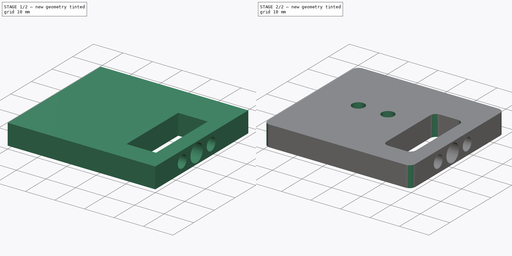
[diagram: build sequence overview — one tinted view per stage of 2, left to right]
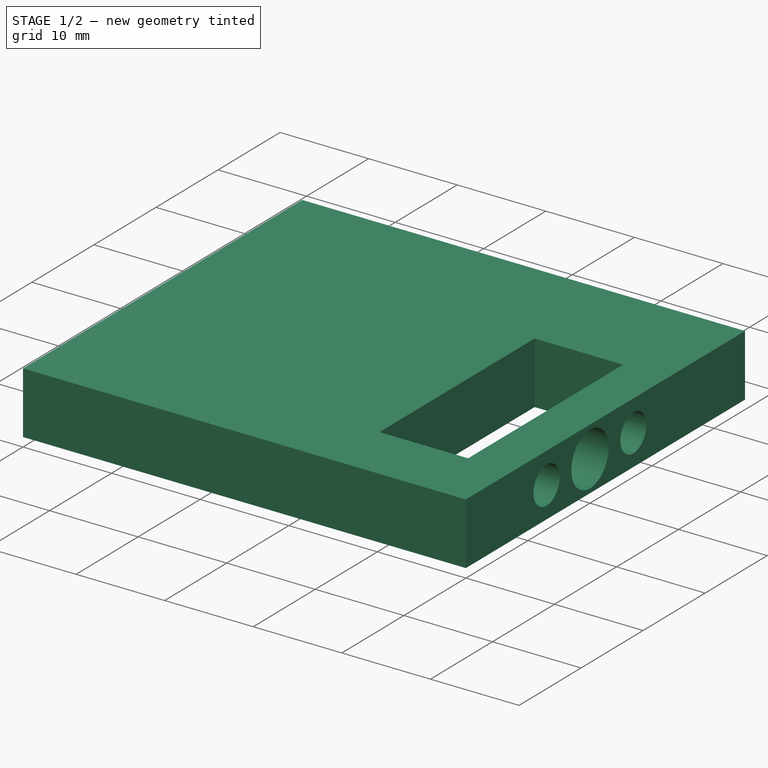
[diagram: stage 1 of 2 — iso view after this stage's code; geometry added in this stage tinted green]
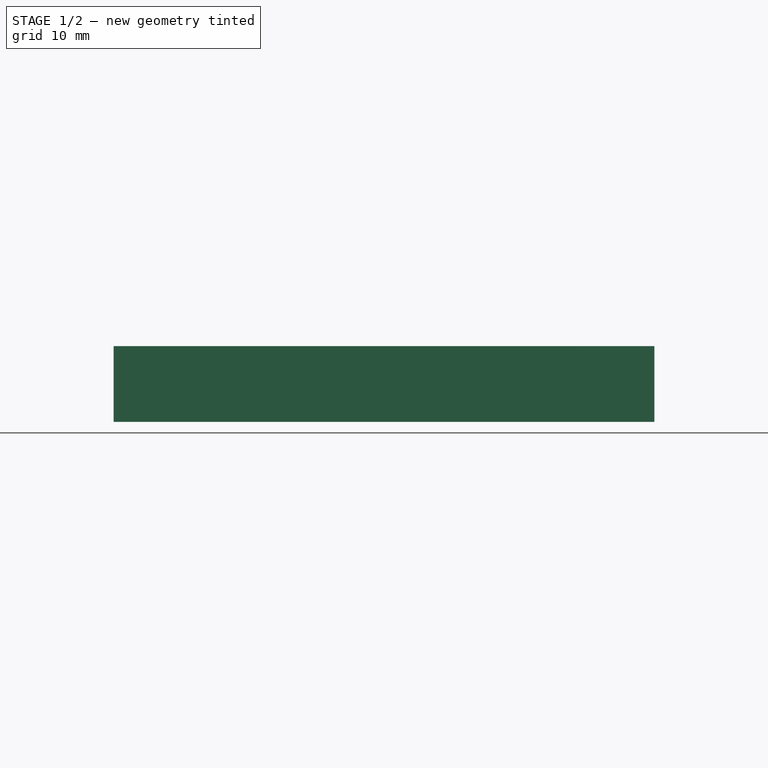
[diagram: stage 1 of 2 — front view after this stage's code; geometry added in this stage tinted green]
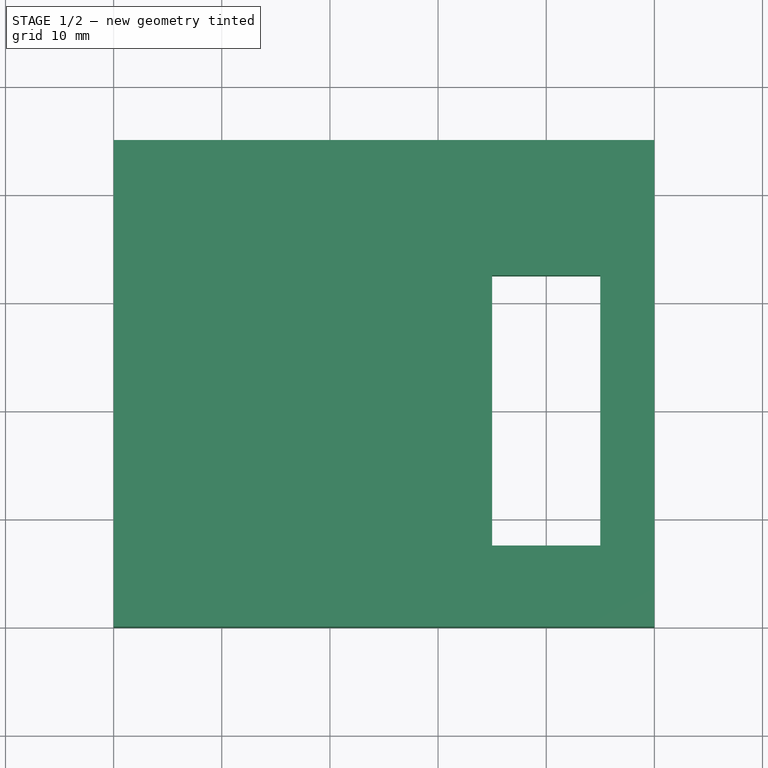
[diagram: stage 1 of 2 — top view after this stage's code; geometry added in this stage tinted green]
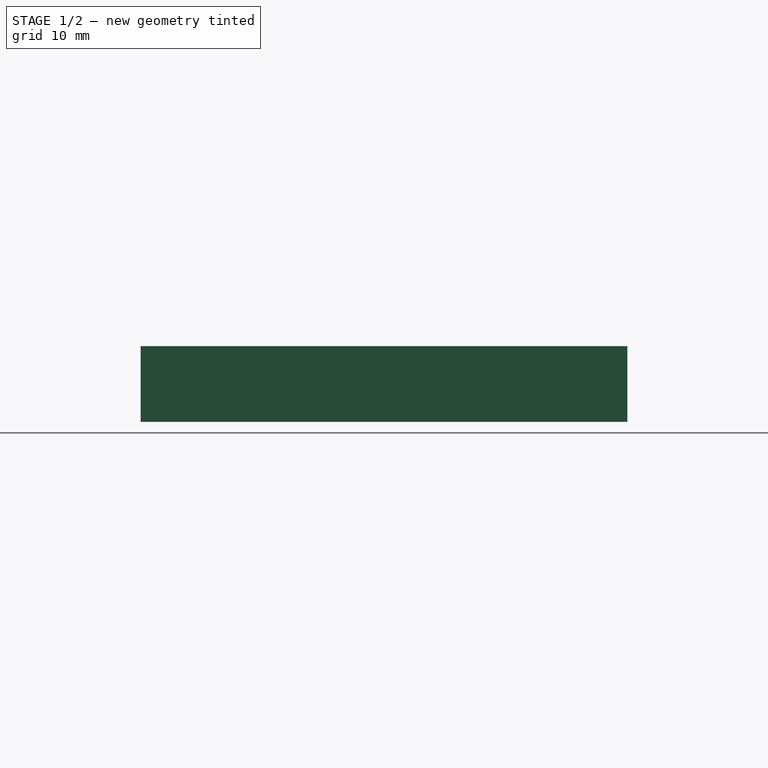
[diagram: stage 1 of 2 — right view after this stage's code; geometry added in this stage tinted green]
FCSTD DOCUMENT  (FreeCAD 2023.1102R14555 (Git shallow))
Label: Camera_Base
License: All rights reserved
LicenseURL: https://en.wikipedia.org/wiki/All_rights_reserved
objects: App::FeaturePython×8, Part::FeaturePython×7, Sketcher::SketchObject×3, App::Link×2, PartDesign::SubShapeBinder×2, Part::SubShapeBinder×2, PartDesign::Pocket×2, PartDesign::Plane×1, PartDesign::Pad×1, PartDesign::Fillet×1, PartDesign::Body×1, App::Part×1
note: 30 computed .brp shape members not serialized (recipe doc carries the construction recipe); baked Part::Feature solids carry a one-line shape summary decoded from their .brp
EXTERNAL_REF file=Servo_Horn.FCStd obj=Part
EXTERNAL_REF file=Camera_Holder.FCStd obj=Assembly
EXTERNAL_REF file=Final_Assembly.FCStd obj=Assembly

FEATURE [Sketcher::SketchObject] Sketch001
  ArcFitTolerance = 1e-06
  AttachmentSupport = -> [DatumPlane]
  ExternalBSplineMaxDegree = 5
  ExternalBSplineTolerance = 0.0001
  ExternalGeometry = -> [Fillet]
  FullyConstrained = true
  InternalTolerance = 1e-06
  InvalidShape = false
  MakeInternals = false
  MapMode = 5
  Placement = pos=(1.39876e-07,0,1.6) rot=(0,1.01411,0;0rad)
  Support = -> [DatumPlane]
  TreeRank = 38
  ValidateShape = false
  sketch-geometry (4):
    g0: LineSegment StartX=-10 StartY=-20.5 StartZ=0 EndX=10 EndY=-20.5 EndZ=0
    g1: LineSegment StartX=10 StartY=-20.5 StartZ=0 EndX=10 EndY=-23.5 EndZ=0
    g2: LineSegment StartX=10 StartY=-23.5 StartZ=0 EndX=-10 EndY=-23.5 EndZ=0
    g3: LineSegment StartX=-10 StartY=-23.5 StartZ=0 EndX=-10 EndY=-20.5 EndZ=0
  constraints (11):
    c: Coincident(g0,g1)
    c: Coincident(g1,g2)
    c: Coincident(g2,g3)
    c: Coincident(g3,g0)
    c: Horizontal(g2)
    c: Vertical(g1)
    c: Vertical(g3)
    c: PointOnObject(g0,g-3)
    c: Symmetric(g0,g0,g-2)
    c: Distance(g2) = 20
    c: Distance(g3) = 3
FEATURE [PartDesign::Pad] Pad001
  AddSubType = 0
  AlongSketchNormal = false
  AutoTaperInnerAngle = true
  BaseFeature = -> Fillet
  CheckUpToFaceLimits = true
  ClaimChildren = false
  Direction = (8.74228e-08,0,1)
  Fit = 0
  FitJoin = 0
  InnerFit = 0
  InnerFitJoin = 0
  InvalidShape = false
  Length = 20
  Length2 = 10
  Linearize = true
  NewSolid = false
  Profile = -> Sketch001
  ReferenceAxis = -> Sketch001 [N_Axis]
  Refine = true
  Suppress = false
  TaperInnerAngle = 0
  TaperInnerAngleRev = 0
  TreeRank = 39
  Type = 0
  ValidateShape = true
  _ProfileBasedVersion = 1
FEATURE [Sketcher::SketchObject] Sketch002
  ArcFitTolerance = 1e-06
  AttachmentSupport = -> [Pad001]
  ExternalBSplineMaxDegree = 5
  ExternalBSplineTolerance = 0.0001
  ExternalGeometry = -> [Pad001]
  FullyConstrained = true
  InternalTolerance = 1e-06
  InvalidShape = false
  MakeInternals = false
  MapMode = 5
  Placement = pos=(0,-20.5,0) rot=(0,0.707107,0.707107;3.14159rad)
  Support = -> [Pad001]
  TreeRank = 40
  ValidateShape = false
  sketch-geometry (2):
    g0: Circle CenterX=5 CenterY=16.6 CenterZ=0 NormalX=0 NormalY=0 NormalZ=1 AngleXU=0 Radius=2.1
    g1: Circle CenterX=-5 CenterY=16.6 CenterZ=0 NormalX=0 NormalY=0 NormalZ=1 AngleXU=0 Radius=2.1
  constraints (5):
    c: Equal(g0,g1)
    c: Symmetric(g0,g1,g-2)
    c: Diameter(g0) = 4.2
    c: Distance(g0,g1) = 10
    c: Distance(g0,g-3) = 5
FEATURE [PartDesign::Pocket] Pocket
  AddSubType = 1
  AlongSketchNormal = false
  AutoTaperInnerAngle = true
  BaseFeature = -> Pad001
  CheckUpToFaceLimits = true
  ClaimChildren = false
  Direction = (0,-1,2e-16)
  Fit = 0
  FitJoin = 0
  InnerFit = 0
  InnerFitJoin = 0
  InvalidShape = false
  Length = 9
  Length2 = 10
  Linearize = true
  NewSolid = false
  Profile = -> Sketch002
  ReferenceAxis = -> Sketch002 [N_Axis]
  Refine = true
  Suppress = false
  TaperInnerAngle = 0
  TaperInnerAngleRev = 0
  TreeRank = 41
  Type = 0
  ValidateShape = true
  _ProfileBasedVersion = 1
  _Version = 1
FEATURE [PartDesign::Fillet] Fillet001
  AddSubType = 0
  Base = -> Pocket [Edge55,Edge63]
  BaseFeature = -> Pocket
  InvalidShape = false
  NewSolid = false
  Radius = 1
  Refine = true
  SupportTransform = false
  Suppress = false
  TreeRank = 42
  UseAllEdges = false
  ValidateShape = true
FEATURE [PartDesign::Body] Body
  AutoGroupSolids = false
  ClaimAllChildren = false
  ExportMode = 0
  Group = -> [Binder,DatumPlane,Sketch,Pad,Fillet,Sketch001,Pad001,Sketch002,Pocket,Fillet001]
  InvalidShape = false
  Origin = -> Origin001
  Tip = -> Fillet001
  TreeRank = 32
  ValidateShape = false
  _ExportChildren = -> [Binder,DatumPlane,Pad,Fillet,Pad001,Pocket,Fillet001]
  _GroupVersion = 1
FEATURE [App::Part] Part
  ClaimAllChildren = false
  ExportMode = 1
  Group = -> [Body]
  Origin = -> Origin
  TreeRank = 20
  _ExportChildren = -> [Body]
  _GroupVersion = 1
FEATURE [Part::FeaturePython] Parts  # WARN: FeaturePython — macro-defined, semantics opaque (R4)
  Group = -> [Part,Link]
  GroupMode = 0
  InvalidShape = false
  TreeRank = 15
  ValidateShape = false
  _LinkVersion = 1
FEATURE [Part::FeaturePython] Assembly  label="Camera_Holder_Assembly"  # WARN: FeaturePython — macro-defined, semantics opaque (R4)
  AutoRelax = true
  BuildShape = 0
  Freeze = false
  Group = -> [Constraints,Elements,Parts]
  InvalidShape = false
  TreeRank = 6
  ValidateShape = false
  Verbose = false
  _LinkVersion = 1
  _SolverType = 1
  _Version = 1
FEATURE [App::FeaturePython] Elements  # WARN: FeaturePython — macro-defined, semantics opaque (R4)
  Group = -> [Element,Element001]
  TreeRank = 4
  _LinkVersion = 1
FEATURE [Part::FeaturePython] Element  label="MountingHole01"  # link proxy (typed FeaturePython)
  Detach = false
  InvalidShape = false
  LinkTransform = true
  LinkedObject = -> Part [Body.Fillet001.Edge43]
  TreeRank = 43
  ValidateShape = false
  _LinkVersion = 1
  _Parent = -> Elements
FEATURE [Part::FeaturePython] Element001  label="MountingHole02"  # link proxy (typed FeaturePython)
  Detach = false
  InvalidShape = false
  LinkTransform = true
  LinkedObject = -> Part [Body.Fillet001.Edge42]
  TreeRank = 44
  ValidateShape = false
  _LinkVersion = 1
  _Parent = -> Elements
---- part Final_Assembly.FCStd = doc fcstd_21778fd5217a ----
FCSTD DOCUMENT  (FreeCAD 2023.1102R14555 (Git shallow))
Label: Final_Assembly
License: All rights reserved
LicenseURL: https://en.wikipedia.org/wiki/All_rights_reserved
objects: App::FeaturePython×10, Part::FeaturePython×7, App::Link×3
note: 6 computed .brp shape members not serialized (recipe doc carries the construction recipe); baked Part::Feature solids carry a one-line shape summary decoded from their .brp
EXTERNAL_REF file=Base_Plate.FCStd obj=Assembly
EXTERNAL_REF file=Top_Base.FCStd obj=Assembly
EXTERNAL_REF file=Camera_Base.FCStd obj=Assembly

FEATURE [App::Link] Link  label="Link(Base_Plate_Assembly)"
  AutoLinkLabel = true
  AutoPlacement = true
  LinkedObject = -> <external Base_Plate.FCStd>#Assembly
  SyncGroupVisibility = false
  TreeRank = 1
  _LinkVersion = 1
FEATURE [App::Link] Link001  label="Link001(Top_Base_Assembly)"
  AutoLinkLabel = true
  AutoPlacement = true
  LinkPlacement = pos=(0,0,8.3) rot=(0,0,1;1.5708rad)
  LinkedObject = -> <external Top_Base.FCStd>#Assembly
  Placement = pos=(0,0,8.3) rot=(0,0,1;1.5708rad)
  SyncGroupVisibility = false
  TreeRank = 2
  _LinkVersion = 1
FEATURE [App::Link] Link002  label="Link002(Camera_Base_Assembly)"
  AutoLinkLabel = true
  AutoPlacement = true
  LinkPlacement = pos=(-19.7,-5.8,22.2) rot=(-1.2e-05,-1.2e-05,1;1.5708rad)
  LinkedObject = -> <external Camera_Base.FCStd>#Assembly
  Placement = pos=(-19.7,-5.8,22.2) rot=(-1.2e-05,-1.2e-05,1;1.5708rad)
  SyncGroupVisibility = false
  TreeRank = 16
  _LinkVersion = 1
FEATURE [Part::FeaturePython] Parts  # WARN: FeaturePython — macro-defined, semantics opaque (R4)
  Group = -> [Link,Link001,Link002]
  GroupMode = 0
  InvalidShape = false
  TreeRank = 0
  ValidateShape = false
  _LinkVersion = 1
FEATURE [Part::FeaturePython] Assembly  # WARN: FeaturePython — macro-defined, semantics opaque (R4)
  AutoRelax = true
  BuildShape = 0
  Freeze = false
  Group = -> [Constraints,Elements,Parts]
  InvalidShape = false
  TreeRank = 0
  ValidateShape = false
  Verbose = false
  _LinkVersion = 1
  _SolverType = 1
  _Version = 1
FEATURE [App::FeaturePython] Constraints  # WARN: FeaturePython — macro-defined, semantics opaque (R4)
  Group = -> [Constraint,Constraint001,Constraint002]
  TreeRank = 0
  _LinkVersion = 1
  _Version = 1
FEATURE [App::FeaturePython] Elements  # WARN: FeaturePython — macro-defined, semantics opaque (R4)
  Group = -> [_Element,_Element001,_Element002,_Element003,_Element004]
  TreeRank = 0
  _LinkVersion = 1
FEATURE [App::FeaturePython] Constraint  label="Locked"  # WARN: FeaturePython — macro-defined, semantics opaque (R4)
  Disabled = false
  Group = -> [ElementLink]
  TreeRank = 6
  _ConstraintType = 0
  _LinkVersion = 1
  _Parent = -> Constraints
FEATURE [App::FeaturePython] ElementLink  label="_Element"  # link proxy (typed FeaturePython)
  LinkTransform = true
  LinkedObject = -> _Element
  TreeRank = 4
  _LinkVersion = 1
  _Parent = -> Constraint
FEATURE [Part::FeaturePython] _Element  # link proxy (typed FeaturePython)
  Detach = false
  InvalidShape = false
  LinkTransform = true
  LinkedObject = -> Link [1.$Element.]
  TreeRank = 7
  ValidateShape = false
  _LinkVersion = 1
  _Parent = -> Elements
FEATURE [App::FeaturePython] Constraint001  label="PlaneCoincident"  # WARN: FeaturePython — macro-defined, semantics opaque (R4)
  Angle = 0
  AnglePitch = 0
  AngleRoll = 0
  Cascade = false
  Disabled = false
  Group = -> [ElementLink001,ElementLink002]
  LockAngle = true
  Multiply = false
  OffsetX = 0
  OffsetY = 0
  TreeRank = 13
  _ConstraintType = 35
  _LinkVersion = 1
  _Parent = -> Constraints
FEATURE [App::FeaturePython] ElementLink001  label="_Element001"  # link proxy (typed FeaturePython)
  LinkTransform = true
  LinkedObject = -> _Element001
  TreeRank = 9
  _LinkVersion = 1
  _Parent = -> Constraint001
FEATURE [Part::FeaturePython] _Element001  # link proxy (typed FeaturePython)
  Detach = false
  InvalidShape = false
  LinkTransform = true
  LinkedObject = -> Link [1.$Element001.]
  TreeRank = 14
  ValidateShape = false
  _LinkVersion = 1
  _Parent = -> Elements
FEATURE [App::FeaturePython] ElementLink002  label="_Element002"  # link proxy (typed FeaturePython)
  LinkTransform = true
  LinkedObject = -> _Element002
  TreeRank = 11
  _LinkVersion = 1
  _Parent = -> Constraint001
FEATURE [Part::FeaturePython] _Element002  # link proxy (typed FeaturePython)
  Detach = false
  InvalidShape = false
  LinkTransform = true
  LinkedObject = -> Link001 [1.$_Element.]
  TreeRank = 15
  ValidateShape = false
  _LinkVersion = 1
  _Parent = -> Elements
FEATURE [App::FeaturePython] Constraint002  label="PlaneCoincident001"  # WARN: FeaturePython — macro-defined, semantics opaque (R4)
  Angle = 0
  AnglePitch = 0
  AngleRoll = 18
  Cascade = false
  Disabled = false
  Group = -> [ElementLink003,ElementLink004]
  LockAngle = false
  Multiply = false
  OffsetX = 0
  OffsetY = 0
  TreeRank = 22
  _ConstraintType = 35
  _LinkVersion = 1
  _Parent = -> Constraints
FEATURE [App::FeaturePython] ElementLink003  label="Servo_Gear_Base@Link001(Top_Base_Assembly)@"  # link proxy (typed FeaturePython)
  LinkTransform = true
  LinkedObject = -> _Element003
  TreeRank = 18
  _LinkVersion = 1
  _Parent = -> Constraint002
FEATURE [Part::FeaturePython] _Element003  label="Servo_Gear_Base@Link001(Top_Base_Assembly)@"  # link proxy (typed FeaturePython)
  Detach = false
  InvalidShape = false
  LinkTransform = true
  LinkedObject = -> Link001 [1.$Servo_Gear_Base.]
  TreeRank = 23
  ValidateShape = false
  _LinkVersion = 1
  _Parent = -> Elements
FEATURE [App::FeaturePython] ElementLink004  label="Horn_Base@Link002(Camera_Base_Assembly)@"  # link proxy (typed FeaturePython)
  LinkTransform = true
  LinkedObject = -> _Element004
  TreeRank = 20
  _LinkVersion = 1
  _Parent = -> Constraint002
FEATURE [Part::FeaturePython] _Element004  label="Horn_Base@Link002(Camera_Base_Assembly)@"  # link proxy (typed FeaturePython)
  Detach = false
  InvalidShape = false
  LinkTransform = true
  LinkedObject = -> Link002 [1.$Horn_Base.]
  TreeRank = 24
  ValidateShape = false
  _LinkVersion = 1
  _Parent = -> Elements
---- part Servo_Horn.FCStd = doc fcstd_1d8daf96744a ----
FCSTD DOCUMENT  (FreeCAD 2023.1102R14555 (Git shallow))
Label: Servo_Horn
License: All rights reserved
LicenseURL: http://en.wikipedia.org/wiki/All_rights_reserved
objects: Sketcher::SketchObject×4, PartDesign::Pad×2, PartDesign::Plane×2, PartDesign::AdditiveLoft×1, PartDesign::Chamfer×1, PartDesign::Hole×1, PartDesign::Pocket×1, PartDesign::Body×1, App::Part×1
note: 29 computed .brp shape members not serialized (recipe doc carries the construction recipe); baked Part::Feature solids carry a one-line shape summary decoded from their .brp

FEATURE [Sketcher::SketchObject] Sketch
  ArcFitTolerance = 0
  AttachmentSupport = -> [XY_Plane]
  ExternalBSplineMaxDegree = 0
  ExternalBSplineTolerance = 0
  FullyConstrained = true
  InternalTolerance = 1e-06
  InvalidShape = false
  MakeInternals = false
  MapMode = 5
  Support = -> [XY_Plane]
  TreeRank = 0
  ValidateShape = false
  sketch-geometry (17):
    g0: ArcOfCircle CenterX=0 CenterY=-1.81733 CenterZ=0 NormalX=0 NormalY=0 NormalZ=1 AngleXU=0 Radius=7.31733 StartAngle=1.25824 EndAngle=1.88335
    g1: LineSegment StartX=-2.25 StartY=5.14549 StartZ=0 EndX=-8.75374 EndY=3.04383 EndZ=0
    g2: LineSegment StartX=2.25 StartY=5.14549 StartZ=0 EndX=8.75374 EndY=3.04383 EndZ=0
    g3: GeomPoint [constr] X=0 Y=5.5 Z=0
    g4: LineSegment StartX=-9.1 StartY=2.56806 StartZ=0 EndX=-9.1 EndY=-2.56806 EndZ=0
    g5: LineSegment StartX=9.1 StartY=2.56806 StartZ=0 EndX=9.1 EndY=-2.56806 EndZ=0
    g6: ArcOfCircle CenterX=-8.6 CenterY=2.56806 CenterZ=0 NormalX=0 NormalY=0 NormalZ=1 AngleXU=0 Radius=0.5 StartAngle=1.88335 EndAngle=3.14159
    g7: GeomPoint [constr] X=-9.1 Y=2.93194 Z=0
    g8: ArcOfCircle CenterX=8.6 CenterY=2.56806 CenterZ=0 NormalX=0 NormalY=0 NormalZ=1 AngleXU=0 Radius=0.5 StartAngle=-9e-16 EndAngle=1.25824
    g9: GeomPoint [constr] X=9.1 Y=2.93194 Z=0
    g10: LineSegment StartX=-8.75374 StartY=-3.04383 StartZ=0 EndX=-2.25 EndY=-5.14549 EndZ=0
    g11: LineSegment StartX=8.75374 StartY=-3.04383 StartZ=0 EndX=2.25 EndY=-5.14549 EndZ=0
    g12: ArcOfCircle CenterX=0 CenterY=1.81733 CenterZ=0 NormalX=0 NormalY=0 NormalZ=1 AngleXU=0 Radius=7.31733 StartAngle=4.39984 EndAngle=5.02494
    g13: ArcOfCircle CenterX=-8.6 CenterY=-2.56806 CenterZ=0 NormalX=0 NormalY=0 NormalZ=1 AngleXU=0 Radius=0.5 StartAngle=3.14159 EndAngle=4.39984
    g14: GeomPoint [constr] X=-9.1 Y=-2.93194 Z=0
    g15: ArcOfCircle CenterX=8.6 CenterY=-2.56806 CenterZ=0 NormalX=0 NormalY=0 NormalZ=1 AngleXU=0 Radius=0.5 StartAngle=5.02494 EndAngle=6.28319
    g16: GeomPoint [constr] X=9.1 Y=-2.93194 Z=0
  constraints (39):
    c: Tangent(g1,g0) = -1.5708
    c: Tangent(g2,g0) = 1.5708
    c: PointOnObject(g3,g0)
    c: PointOnObject(g3,g-2)
    c: Horizontal(g0,g0)
    c: Vertical(g5)
    c: PointOnObject(g7,g4)
    c: PointOnObject(g7,g1)
    c: Tangent(g4,g6) = -1.5708
    c: Tangent(g1,g6) = -1.5708
    c: PointOnObject(g9,g5)
    c: PointOnObject(g9,g2)
    c: Tangent(g5,g8) = 1.5708
    c: Tangent(g2,g8) = 1.5708
    c: Equal(g8,g6)
    c: Radius(g6) = 0.5
    c: Horizontal(g7,g9)
    c: Distance(g5,g4) = 18.2
    c: Distance(g4,g14) = 5.5
    c: Tangent(g12,g10) = -1.5708
    c: Tangent(g12,g11) = 1.5708
    c: PointOnObject(g14,g4)
    c: PointOnObject(g14,g10)
    c: Tangent(g4,g13) = -1.5708
    c: Tangent(g10,g13) = -1.5708
    c: PointOnObject(g16,g11)
    c: PointOnObject(g16,g5)
    c: Tangent(g11,g15) = 1.5708
    c: Tangent(g5,g15) = 1.5708
    c: Symmetric(g4,g4,g-1)
    c: Equal(g13,g15)
    c: Equal(g15,g6)
    c: Equal(g12,g0)
    c: Equal(g5,g4)
    c: Distance(g-1,g3) = 5.5
    c: PointOnObject(g0,g-2)
    c: PointOnObject(g12,g-2)
    c: Distance(g0,g0) = 4.5
    c: Equal(g2,g11)
FEATURE [PartDesign::Pad] Pad
  AddSubType = 0
  AutoTaperInnerAngle = true
  CheckUpToFaceLimits = true
  ClaimChildren = false
  Direction = (0,0,1)
  Fit = 0
  FitJoin = 0
  InnerFit = 0
  InnerFitJoin = 0
  InvalidShape = false
  Length = 2.5
  Length2 = 10
  NewSolid = false
  Profile = -> Sketch
  ReferenceAxis = -> Sketch [N_Axis]
  Suppress = false
  TaperInnerAngle = 0
  TaperInnerAngleRev = 0
  TreeRank = 0
  Type = 0
  ValidateShape = true
  _ProfileBasedVersion = 0
FEATURE [PartDesign::Plane] DatumPlane
  AttachmentSupport = -> [Pad]
  InvalidShape = false
  Length = 10
  MapMode = 5
  MinimumLength = 10
  MinimumWidth = 10
  Placement = pos=(0,0,2.5) rot=(0,0,1;0rad)
  ResizeMode = 0
  Support = -> [Pad]
  TreeRank = 0
  ValidateShape = false
  Width = 10
FEATURE [Sketcher::SketchObject] Sketch001
  ArcFitTolerance = 0
  AttachmentSupport = -> [DatumPlane]
  ExternalBSplineMaxDegree = 0
  ExternalBSplineTolerance = 0
  FullyConstrained = true
  InternalTolerance = 1e-06
  InvalidShape = false
  MakeInternals = false
  MapMode = 5
  Placement = pos=(0,0,2.5) rot=(0,0,1;0rad)
  Support = -> [DatumPlane]
  TreeRank = 0
  ValidateShape = false
  sketch-geometry (1):
    g0: Circle CenterX=0 CenterY=0 CenterZ=0 NormalX=0 NormalY=0 NormalZ=1 AngleXU=0 Radius=5.45
  constraints (2):
    c: Coincident(g0,g-1)
    c: Diameter(g0) = 10.9
FEATURE [PartDesign::Plane] DatumPlane001
  AttachmentOffset = pos=(0,0,1.5) rot=(0,0,1;0rad)
  AttachmentSupport = -> [Pad]
  InvalidShape = false
  Length = 18.2
  MapMode = 5
  MinimumLength = 10
  MinimumWidth = 10
  Placement = pos=(0,0,4) rot=(0,0,1;0rad)
  ResizeMode = 0
  Support = -> [Pad]
  TreeRank = 0
  ValidateShape = false
  Width = 11
FEATURE [Sketcher::SketchObject] Sketch002
  ArcFitTolerance = 0
  AttachmentSupport = -> [DatumPlane001]
  ExternalBSplineMaxDegree = 0
  ExternalBSplineTolerance = 0
  FullyConstrained = true
  InternalTolerance = 1e-06
  InvalidShape = false
  MakeInternals = false
  MapMode = 5
  Placement = pos=(0,0,4) rot=(0,0,1;0rad)
  Support = -> [DatumPlane001]
  TreeRank = 0
  ValidateShape = false
  sketch-geometry (1):
    g0: Circle CenterX=0 CenterY=0 CenterZ=0 NormalX=0 NormalY=0 NormalZ=1 AngleXU=0 Radius=4.5
  constraints (2):
    c: Coincident(g0,g-1)
    c: Diameter(g0) = 9
FEATURE [PartDesign::AdditiveLoft] AdditiveLoft
  AddSubType = 0
  BaseFeature = -> Pad
  ClaimChildren = false
  Closed = false
  Fit = 0
  FitJoin = 0
  InnerFit = 0
  InnerFitJoin = 0
  InvalidShape = false
  NewSolid = false
  Profile = -> Sketch001
  Ruled = false
  Sections = -> [Sketch002]
  SplitProfile = false
  Suppress = false
  TreeRank = 0
  ValidateShape = true
  _ProfileBasedVersion = 0
FEATURE [PartDesign::Pad] Pad001
  AddSubType = 0
  AutoTaperInnerAngle = true
  BaseFeature = -> AdditiveLoft
  CheckUpToFaceLimits = true
  ClaimChildren = false
  Direction = (0,0,1)
  Fit = 0
  FitJoin = 0
  InnerFit = 0
  InnerFitJoin = 0
  InvalidShape = false
  Length = 2.5
  Length2 = 10
  NewSolid = false
  Profile = -> AdditiveLoft [Face16]
  Suppress = false
  TaperInnerAngle = 0
  TaperInnerAngleRev = 0
  TreeRank = 0
  Type = 0
  ValidateShape = true
  _ProfileBasedVersion = 0
FEATURE [PartDesign::Chamfer] Chamfer
  AddSubType = 0
  Angle = 45
  Base = -> Pad001 [Edge41]
  BaseFeature = -> Pad001
  ChamferType = 0
  FlipDirection = false
  InvalidShape = false
  NewSolid = false
  Size = 0.5
  Size2 = 1
  SupportTransform = false
  Suppress = false
  TreeRank = 0
  UseAllEdges = false
  ValidateShape = true
FEATURE [PartDesign::Hole] Hole
  AddSubType = 1
  BaseFeature = -> Chamfer
  ClaimChildren = false
  CustomThreadClearance = 0
  Depth = 44.919
  DepthType = 1
  Diameter = 6
  DrillForDepth = false
  DrillPoint = 1
  DrillPointAngle = 118
  Fit = 0
  FitJoin = 0
  HoleCutCountersinkAngle = 90
  HoleCutCustomValues = false
  HoleCutDepth = 0
  HoleCutDiameter = 6.1
  HoleCutType = 0
  InnerFit = 0
  InnerFitJoin = 0
  InvalidShape = false
  ModelThread = false
  NewSolid = false
  Profile = -> Chamfer [Face4]
  Suppress = false
  Tapered = false
  TaperedAngle = 90
  ThreadClass = 0
  ThreadDepth = 44.919
  ThreadDepthType = 0
  ThreadDirection = 0
  ThreadFit = 0
  ThreadSize = 0
  ThreadType = 0
  Threaded = false
  TreeRank = 0
  UseCustomThreadClearance = false
  ValidateShape = true
  _ProfileBasedVersion = 0
FEATURE [Sketcher::SketchObject] Sketch003
  ArcFitTolerance = 0
  AttachmentSupport = -> [XY_Plane]
  ExternalBSplineMaxDegree = 0
  ExternalBSplineTolerance = 0
  FullyConstrained = true
  InternalTolerance = 1e-06
  InvalidShape = false
  MakeInternals = false
  MapMode = 5
  Support = -> [XY_Plane]
  TreeRank = 0
  ValidateShape = false
  sketch-geometry (2):
    g0: Circle CenterX=-7 CenterY=0 CenterZ=0 NormalX=0 NormalY=0 NormalZ=1 AngleXU=0 Radius=1.575
    g1: Circle CenterX=7 CenterY=0 CenterZ=0 NormalX=0 NormalY=0 NormalZ=1 AngleXU=0 Radius=1.575
  constraints (5):
    c: PointOnObject(g0,g-1)
    c: Equal(g1,g0)
    c: Diameter(g0) = 3.15
    c: Symmetric(g0,g1,g-1)
    c: Distance(g0,g1) = 14
FEATURE [PartDesign::Pocket] Pocket
  AddSubType = 1
  AutoTaperInnerAngle = true
  BaseFeature = -> Hole
  CheckUpToFaceLimits = true
  ClaimChildren = false
  Direction = (0,0,-1)
  Fit = 0
  FitJoin = 0
  InnerFit = 0
  InnerFitJoin = 0
  InvalidShape = false
  Length = 5
  Length2 = 5
  NewSolid = false
  Profile = -> Sketch003
  ReferenceAxis = -> Sketch003 [N_Axis]
  Reversed = true
  Suppress = false
  TaperInnerAngle = 0
  TaperInnerAngleRev = 0
  TreeRank = 0
  Type = 1
  ValidateShape = true
  _ProfileBasedVersion = 0
  _Version = 0
FEATURE [PartDesign::Body] Body
  AutoGroupSolids = false
  ClaimAllChildren = false
  ExportMode = 0
  Group = -> [Sketch,Pad,DatumPlane,Sketch001,DatumPlane001,Sketch002,AdditiveLoft,Pad001,Chamfer,Hole,Sketch003,Pocket]
  InvalidShape = false
  Origin = -> Origin
  Tip = -> Pocket
  TreeRank = 0
  ValidateShape = false
  _ExportChildren = -> [Pad,DatumPlane,DatumPlane001,AdditiveLoft,Pad001,Chamfer,Hole,Pocket]
  _GroupVersion = 1
FEATURE [App::Part] Part  label="Servo_Horn"
  ClaimAllChildren = false
  ExportMode = 1
  Group = -> [Body]
  Origin = -> Origin001
  TreeRank = 5
  _ExportChildren = -> [Body]
  _GroupVersion = 1
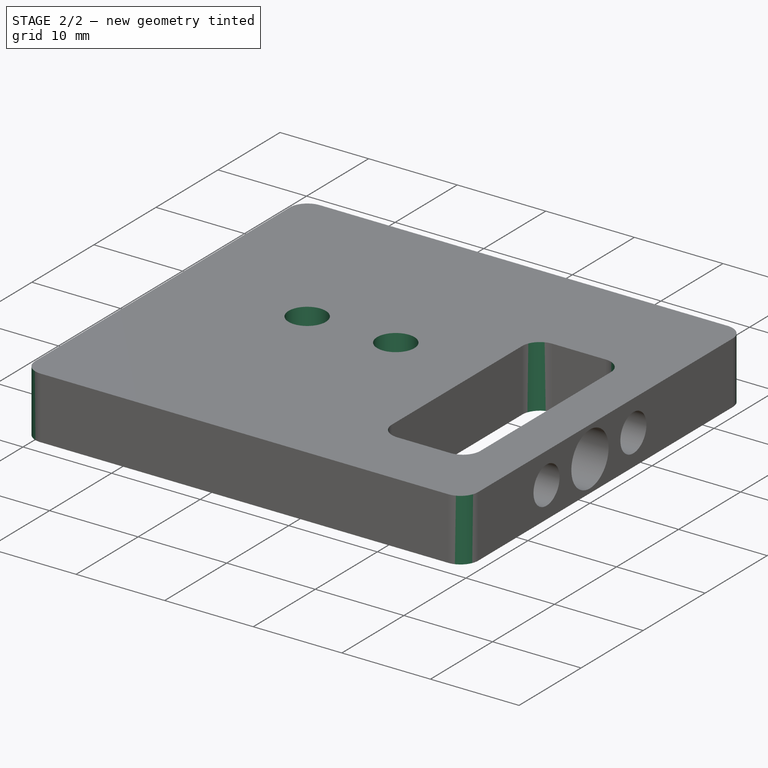
[diagram: stage 2 of 2 — iso view after this stage's code; geometry added in this stage tinted green]
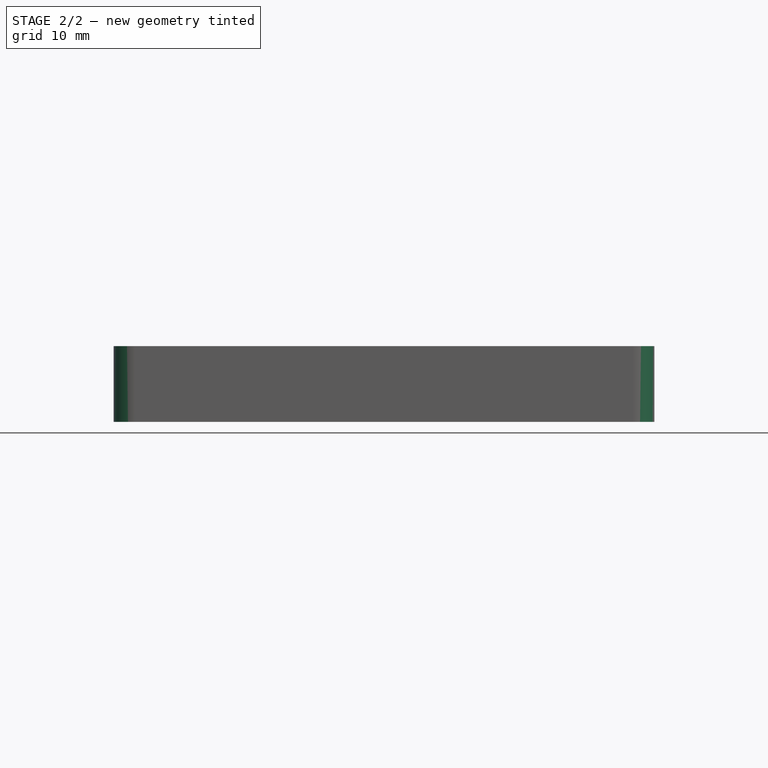
[diagram: stage 2 of 2 — front view after this stage's code; geometry added in this stage tinted green]
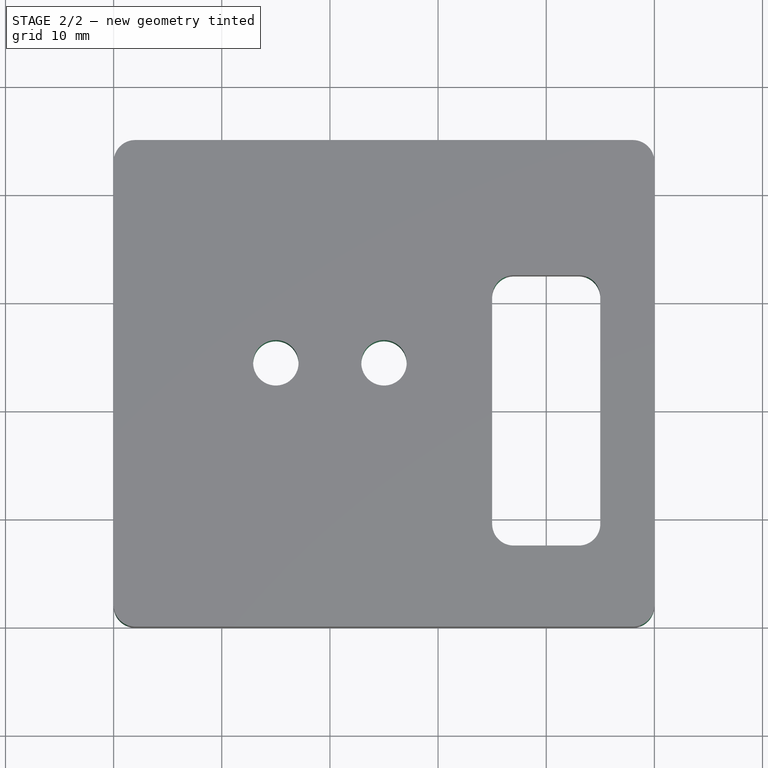
[diagram: stage 2 of 2 — top view after this stage's code; geometry added in this stage tinted green]
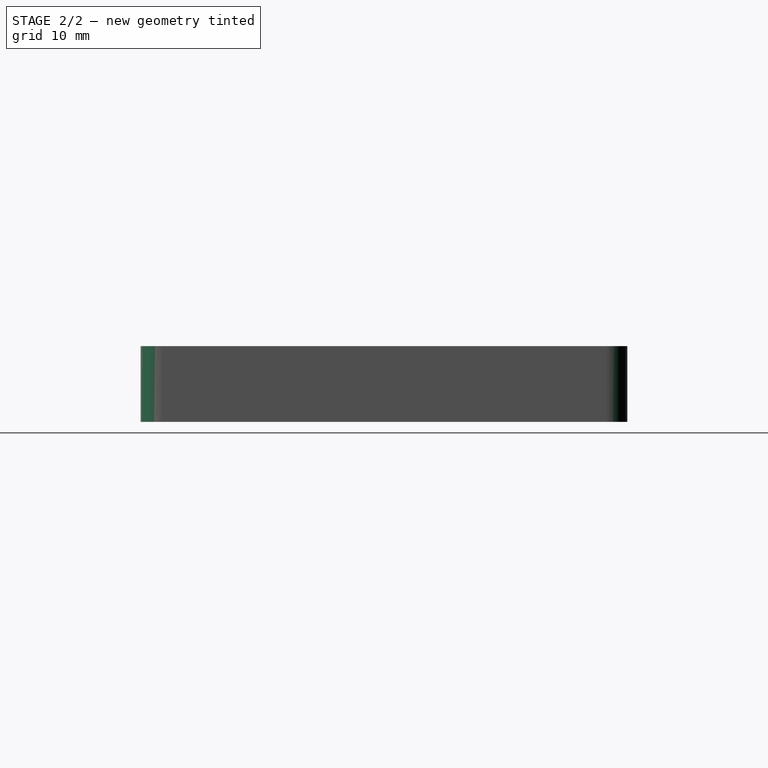
[diagram: stage 2 of 2 — right view after this stage's code; geometry added in this stage tinted green]
FEATURE [App::Link] Link  label="Link(Servo_Horn)"
  AutoLinkLabel = true
  AutoPlacement = true
  LinkPlacement = pos=(0,0,0) rot=(-0.57735,0.57735,-0.57735;2.0944rad)
  LinkedObject = -> <external Servo_Horn.FCStd>#Part
  Placement = pos=(0,0,0) rot=(-0.57735,0.57735,-0.57735;2.0944rad)
  SyncGroupVisibility = false
  TreeRank = 1
  _LinkVersion = 1
FEATURE [PartDesign::SubShapeBinder] Binder  label="Binder(Pocket)"
  BindCopyOnChange = 0
  BindMode = 0
  ClaimChildren = false
  Context = -> Assembly [Parts.Part.Binder.]
  EdgeTolerance = 1e-06
  FillStyle = 0
  Fuse = false
  InvalidShape = false
  MakeFace = true
  MergeEdges = true
  OffsetFill = false
  OffsetIntersection = false
  OffsetJoinType = 0
  OffsetOpenResult = false
  Outline = false
  PartialLoad = false
  Relative = true
  SplitEdges = false
  Support = -> [Link[Body.Pocket.Face9]]
  TightBound = false
  TreeRank = 7
  ValidateShape = false
  _Version = 8
FEATURE [PartDesign::Plane] DatumPlane
  AttachmentOffset = pos=(0,0,0) rot=(1,0,0;1.5708rad)
  AttachmentSupport = -> [Binder]
  InvalidShape = false
  Length = 50
  MapMode = 5
  MinimumLength = 10
  MinimumWidth = 10
  Placement = pos=(0,0,0) rot=(-0.707107,0.707107,0;3.14159rad)
  ResizeMode = 0
  Support = -> [Binder]
  TreeRank = 8
  ValidateShape = false
  Width = 50
FEATURE [Part::SubShapeBinder] Import  label="Import(DatumPlane)"
  BindCopyOnChange = 0
  BindMode = 0
  ClaimChildren = false
  Context = -> Assembly [Parts.Part.Body.Import.]
  EdgeTolerance = 1e-06
  FillStyle = 0
  Fuse = false
  InvalidShape = false
  MakeFace = false
  MergeEdges = true
  OffsetFill = false
  OffsetIntersection = false
  OffsetJoinType = 0
  OffsetOpenResult = false
  Outline = false
  PartialLoad = false
  Relative = true
  SplitEdges = false
  Support = -> [DatumPlane]
  TightBound = false
  TreeRank = 23
  ValidateShape = false
  _Version = 8
FEATURE [Sketcher::SketchObject] Sketch
  ArcFitTolerance = 1e-06
  AttachmentSupport = -> [Import]
  ExternalBSplineMaxDegree = 5
  ExternalBSplineTolerance = 0.0001
  FullyConstrained = true
  InternalTolerance = 1e-06
  InvalidShape = false
  MakeInternals = false
  MapMode = 5
  Placement = pos=(0,0,0) rot=(1,0,0;3.14159rad)
  Support = -> [Import]
  TreeRank = 24
  ValidateShape = false
  sketch-geometry (8):
    g0: LineSegment StartX=0 StartY=20 StartZ=0 EndX=-50 EndY=20 EndZ=0
    g1: LineSegment StartX=-50 StartY=20 StartZ=0 EndX=-50 EndY=-25 EndZ=0
    g2: LineSegment StartX=-50 StartY=-25 StartZ=0 EndX=0 EndY=-25 EndZ=0
    g3: LineSegment StartX=0 StartY=-25 StartZ=0 EndX=0 EndY=20 EndZ=0
    g4: LineSegment StartX=-15 StartY=12.5 StartZ=0 EndX=-5 EndY=12.5 EndZ=0
    g5: LineSegment StartX=-5 StartY=12.5 StartZ=0 EndX=-5 EndY=-12.5 EndZ=0
    g6: LineSegment StartX=-5 StartY=-12.5 StartZ=0 EndX=-15 EndY=-12.5 EndZ=0
    g7: LineSegment StartX=-15 StartY=-12.5 StartZ=0 EndX=-15 EndY=12.5 EndZ=0
  constraints (23):
    c: Coincident(g0,g1)
    c: Coincident(g1,g2)
    c: Coincident(g2,g3)
    c: Coincident(g3,g0)
    c: Horizontal(g0)
    c: Horizontal(g2)
    c: Vertical(g1)
    c: Vertical(g3)
    c: Distance(g0) = 50
    c: Coincident(g4,g5)
    c: Coincident(g5,g6)
    c: Coincident(g6,g7)
    c: Coincident(g7,g4)
    c: Horizontal(g4)
    c: Horizontal(g6)
    c: Vertical(g7)
    c: Symmetric(g4,g5,g-1)
    c: Distance(g4,g3) = 5
    c: Distance(g7) = 25
    c: Distance(g4) = 10
    c: PointOnObject(g0,g-2)
    c: DistanceY(g2,g-1) = 25
    c: DistanceY(g-1,g0) = 20
FEATURE [PartDesign::Pad] Pad
  AddSubType = 0
  AlongSketchNormal = false
  AutoTaperInnerAngle = true
  CheckUpToFaceLimits = true
  ClaimChildren = false
  Direction = (-1.19209e-07,2e-16,-1)
  Fit = 0
  FitJoin = 0
  InnerFit = 0
  InnerFitJoin = 0
  InvalidShape = false
  Length = 7
  Length2 = 10
  Linearize = true
  Midplane = true
  NewSolid = false
  Profile = -> Sketch
  ReferenceAxis = -> Sketch [N_Axis]
  Refine = true
  Suppress = false
  TaperInnerAngle = 0
  TaperInnerAngleRev = 0
  TreeRank = 25
  Type = 0
  ValidateShape = true
  _ProfileBasedVersion = 1
FEATURE [Part::SubShapeBinder] Import001  label="Import001(*Pocket)"
  BindCopyOnChange = 0
  BindMode = 0
  ClaimChildren = false
  Context = -> Assembly [Parts.Part.Body.Import001.]
  EdgeTolerance = 1e-06
  FillStyle = 0
  Fuse = false
  InvalidShape = false
  MakeFace = false
  MergeEdges = true
  OffsetFill = false
  OffsetIntersection = false
  OffsetJoinType = 0
  OffsetOpenResult = false
  Outline = false
  PartialLoad = false
  Relative = true
  SplitEdges = false
  Support = -> [Binder]
  TightBound = false
  TreeRank = 27
  ValidateShape = false
  _Version = 8
FEATURE [Sketcher::SketchObject] Sketch001
  ArcFitTolerance = 1e-06
  AttachmentSupport = -> [Pad]
  ExternalBSplineMaxDegree = 5
  ExternalBSplineTolerance = 0.0001
  ExternalGeometry = -> [Import001]
  FullyConstrained = true
  InternalTolerance = 1e-06
  InvalidShape = false
  MakeInternals = false
  MapMode = 5
  Placement = pos=(0,0,0) rot=(0.57735,0.57735,0.57735;2.0944rad)
  Support = -> [Pad]
  TreeRank = 26
  ValidateShape = false
  sketch-geometry (2):
    g0: Circle CenterX=-7 CenterY=0 CenterZ=0 NormalX=0 NormalY=0 NormalZ=1 AngleXU=0 Radius=2.1
    g1: Circle CenterX=7 CenterY=0 CenterZ=0 NormalX=0 NormalY=0 NormalZ=1 AngleXU=0 Radius=2.1
  constraints (4):
    c: Coincident(g0,g-3)
    c: Coincident(g1,g-4)
    c: Equal(g1,g0)
    c: Diameter(g0) = 4.2
FEATURE [PartDesign::Pocket] Pocket
  AddSubType = 1
  AlongSketchNormal = false
  AutoTaperInnerAngle = true
  BaseFeature = -> Pad
  CheckUpToFaceLimits = true
  ClaimChildren = false
  Direction = (-1,0,1.19209e-07)
  Fit = 0
  FitJoin = 0
  InnerFit = 0
  InnerFitJoin = 0
  InvalidShape = false
  Length = 8
  Length2 = 10
  Linearize = true
  NewSolid = false
  Profile = -> Sketch001
  ReferenceAxis = -> Sketch001 [N_Axis]
  Refine = true
  Suppress = false
  TaperInnerAngle = 0
  TaperInnerAngleRev = 0
  TreeRank = 28
  Type = 0
  ValidateShape = true
  _ProfileBasedVersion = 1
  _Version = 1
FEATURE [PartDesign::Fillet] Fillet
  AddSubType = 0
  Base = -> Pocket [Edge2,Edge1,Edge5,Edge11,Edge33,Edge32,Edge31,Edge30]
  BaseFeature = -> Pocket
  InvalidShape = false
  NewSolid = false
  Radius = 2
  Refine = true
  SupportTransform = false
  Suppress = false
  TreeRank = 30
  UseAllEdges = false
  ValidateShape = true
FEATURE [App::Link] Link001  label="Link001(Camera_Holder_Assembly)"
  AutoLinkLabel = true
  AutoPlacement = true
  LinkPlacement = pos=(-30,21,27) rot=(1,0,0;1.5708rad)
  LinkedObject = -> <external Camera_Holder.FCStd>#Assembly
  Placement = pos=(-30,21,27) rot=(1,0,0;1.5708rad)
  SyncGroupVisibility = false
  TreeRank = 31
  _LinkVersion = 1
FEATURE [PartDesign::SubShapeBinder] Binder001  label="Binder001(Fillet001)..."
  BindCopyOnChange = 0
  BindMode = 0
  ClaimChildren = false
  Context = -> <external Final_Assembly.FCStd>#Assembly [Parts.Link002.Parts.Part.Body.Binder001.]
  EdgeTolerance = 1e-06
  FillStyle = 0
  Fuse = false
  InvalidShape = false
  MakeFace = true
  MergeEdges = true
  OffsetFill = false
  OffsetIntersection = false
  OffsetJoinType = 0
  OffsetOpenResult = false
  Outline = false
  PartialLoad = false
  Relative = true
  SplitEdges = false
  Support = -> [Link001[Parts.Part.Body.Fillet001.Edge43,Parts.Part.Body.Fillet001.Edge42]]
  TightBound = false
  TreeRank = 32
  ValidateShape = false
  _Version = 8
FEATURE [Sketcher::SketchObject] Sketch002
  ArcFitTolerance = 1e-06
  AttachmentSupport = -> [Fillet]
  ExternalBSplineMaxDegree = 5
  ExternalBSplineTolerance = 0.0001
  ExternalGeometry = -> [Binder001]
  FullyConstrained = true
  InternalTolerance = 1e-06
  InvalidShape = false
  MakeInternals = false
  MapMode = 5
  Placement = pos=(4.17233e-07,-7e-16,3.5) rot=(0,1,0;0rad)
  Support = -> [Fillet]
  TreeRank = 33
  ValidateShape = false
FEATURE [PartDesign::Pocket] Pocket001
  AddSubType = 1
  AlongSketchNormal = false
  AutoTaperInnerAngle = true
  BaseFeature = -> Fillet
  CheckUpToFaceLimits = true
  ClaimChildren = false
  Direction = (-1.19209e-07,2e-16,-1)
  Fit = 0
  FitJoin = 0
  InnerFit = 0
  InnerFitJoin = 0
  InvalidShape = false
  Length = 8
  Length2 = 10
  Linearize = true
  NewSolid = false
  Profile = -> Sketch002
  ReferenceAxis = -> Sketch002 [N_Axis]
  Refine = true
  Suppress = false
  TaperInnerAngle = 0
  TaperInnerAngleRev = 0
  TreeRank = 34
  Type = 0
  ValidateShape = true
  _ProfileBasedVersion = 1
  _Version = 1
FEATURE [PartDesign::Body] Body
  AutoGroupSolids = false
  ClaimAllChildren = false
  ExportMode = 0
  Group = -> [Import,Sketch,Pad,Sketch001,Import001,Pocket,Fillet,Binder001,Sketch002,Pocket001]
  InvalidShape = false
  Origin = -> Origin001
  Tip = -> Pocket001
  TreeRank = 20
  ValidateShape = false
  _ExportChildren = -> [Import,Pad,Import001,Pocket,Fillet,Binder001,Pocket001]
  _GroupVersion = 1
FEATURE [App::Part] Part
  ClaimAllChildren = false
  ExportMode = 1
  Group = -> [Binder,DatumPlane,Body]
  Origin = -> Origin
  TreeRank = 6
  _ExportChildren = -> [Binder,DatumPlane,Body]
  _GroupVersion = 1
FEATURE [Part::FeaturePython] Parts  # WARN: FeaturePython — macro-defined, semantics opaque (R4)
  Group = -> [Part,Link,Link001]
  GroupMode = 0
  InvalidShape = false
  TreeRank = 0
  ValidateShape = false
  _LinkVersion = 1
FEATURE [Part::FeaturePython] Assembly  label="Camera_Base_Assembly"  # WARN: FeaturePython — macro-defined, semantics opaque (R4)
  AutoRelax = true
  BuildShape = 0
  Freeze = false
  Group = -> [Constraints,Elements,Parts]
  InvalidShape = false
  TreeRank = 0
  ValidateShape = false
  Verbose = false
  _LinkVersion = 1
  _SolverType = 1
  _Version = 1
FEATURE [App::FeaturePython] Constraints  # WARN: FeaturePython — macro-defined, semantics opaque (R4)
  Group = -> [Constraint,Constraint001]
  TreeRank = 0
  _LinkVersion = 1
  _Version = 1
FEATURE [App::FeaturePython] Elements  # WARN: FeaturePython — macro-defined, semantics opaque (R4)
  Group = -> [Element,Element001,Element002,_Element,_Element001]
  TreeRank = 0
  _LinkVersion = 1
FEATURE [Part::FeaturePython] Element  label="Horn_Base"  # link proxy (typed FeaturePython)
  Detach = false
  InvalidShape = false
  LinkTransform = true
  LinkedObject = -> Link [Body.Pocket.Face4]
  TreeRank = 29
  ValidateShape = false
  _LinkVersion = 1
  _Parent = -> Elements
FEATURE [Part::FeaturePython] Element001  label="MountingHole01"  # link proxy (typed FeaturePython)
  Detach = false
  InvalidShape = false
  LinkTransform = true
  LinkedObject = -> Part [Body.Pocket001.Edge12]
  TreeRank = 35
  ValidateShape = false
  _LinkVersion = 1
  _Parent = -> Elements
FEATURE [Part::FeaturePython] Element002  label="MountingHole02"  # link proxy (typed FeaturePython)
  Detach = false
  InvalidShape = false
  LinkTransform = true
  LinkedObject = -> Part [Body.Pocket001.Edge13]
  TreeRank = 36
  ValidateShape = false
  _LinkVersion = 1
  _Parent = -> Elements
FEATURE [App::FeaturePython] Constraint  label="PlaneCoincident"  # WARN: FeaturePython — macro-defined, semantics opaque (R4)
  Angle = 0
  AnglePitch = 0
  AngleRoll = 0
  Cascade = false
  Disabled = false
  Group = -> [ElementLink,ElementLink001]
  LockAngle = false
  Multiply = false
  OffsetX = 0
  OffsetY = 0
  TreeRank = 41
  _ConstraintType = 35
  _LinkVersion = 1
  _Parent = -> Constraints
FEATURE [App::FeaturePython] ElementLink  label="MountingHole01"  # link proxy (typed FeaturePython)
  LinkTransform = true
  LinkedObject = -> Element001
  TreeRank = 38
  _LinkVersion = 1
  _Parent = -> Constraint
FEATURE [App::FeaturePython] ElementLink001  label="MountingHole01@Link001(Camera_Holder_Assembly)@"  # link proxy (typed FeaturePython)
  LinkTransform = true
  LinkedObject = -> _Element
  TreeRank = 39
  _LinkVersion = 1
  _Parent = -> Constraint
FEATURE [Part::FeaturePython] _Element  label="MountingHole01@Link001(Camera_Holder_Assembly)@"  # link proxy (typed FeaturePython)
  Detach = false
  InvalidShape = false
  LinkTransform = true
  LinkedObject = -> Link001 [1.$MountingHole01.]
  TreeRank = 42
  ValidateShape = false
  _LinkVersion = 1
  _Parent = -> Elements
FEATURE [App::FeaturePython] Constraint001  label="PlaneCoincident001"  # WARN: FeaturePython — macro-defined, semantics opaque (R4)
  Angle = 0
  AnglePitch = 0
  AngleRoll = 0
  Cascade = false
  Disabled = false
  Group = -> [ElementLink002,ElementLink003]
  LockAngle = false
  Multiply = false
  OffsetX = 0
  OffsetY = 0
  TreeRank = 47
  _ConstraintType = 35
  _LinkVersion = 1
  _Parent = -> Constraints
FEATURE [App::FeaturePython] ElementLink002  label="MountingHole02@Link001(Camera_Holder_Assembly)@"  # link proxy (typed FeaturePython)
  LinkTransform = true
  LinkedObject = -> _Element001
  TreeRank = 44
  _LinkVersion = 1
  _Parent = -> Constraint001
FEATURE [Part::FeaturePython] _Element001  label="MountingHole02@Link001(Camera_Holder_Assembly)@"  # link proxy (typed FeaturePython)
  Detach = false
  InvalidShape = false
  LinkTransform = true
  LinkedObject = -> Link001 [1.$MountingHole02.]
  TreeRank = 48
  ValidateShape = false
  _LinkVersion = 1
  _Parent = -> Elements
FEATURE [App::FeaturePython] ElementLink003  label="MountingHole02"  # link proxy (typed FeaturePython)
  LinkTransform = true
  LinkedObject = -> Element002
  TreeRank = 46
  _LinkVersion = 1
  _Parent = -> Constraint001

RESOLVED EXTERNAL PARTS (link-assembly join: the EXTERNAL_REF files above that resolve inside this repo's crawl, each included once):
---- part Camera_Holder.FCStd = doc fcstd_fe9c8f0101e4 ----
FCSTD DOCUMENT  (FreeCAD 2023.1102R14555 (Git shallow))
Label: Camera_Holder
License: All rights reserved
LicenseURL: https://en.wikipedia.org/wiki/All_rights_reserved
objects: Part::FeaturePython×4, Sketcher::SketchObject×3, App::FeaturePython×2, PartDesign::Pad×2, PartDesign::Fillet×2, App::Link×1, PartDesign::SubShapeBinder×1, PartDesign::Plane×1, PartDesign::Pocket×1, PartDesign::Body×1, App::Part×1
note: 27 computed .brp shape members not serialized (recipe doc carries the construction recipe); baked Part::Feature solids carry a one-line shape summary decoded from their .brp
EXTERNAL_REF file=Arducam_B0197.FCStd obj=Part

FEATURE [App::Link] Link  label="Link(Arducam_B0197)"
  AutoLinkLabel = true
  AutoPlacement = true
  LinkPlacement = pos=(0,0,0) rot=(0,1,0;3.14159rad)
  LinkedObject = -> <external Arducam_B0197.FCStd>#Part
  Placement = pos=(0,0,0) rot=(0,1,0;3.14159rad)
  SyncGroupVisibility = false
  TreeRank = 7
  _LinkVersion = 1
FEATURE [App::FeaturePython] Constraints  # WARN: FeaturePython — macro-defined, semantics opaque (R4)
  TreeRank = 3
  _LinkVersion = 1
  _Version = 1
FEATURE [PartDesign::SubShapeBinder] Binder  label="Binder(*Arducam_B0197)"
  BindCopyOnChange = 0
  BindMode = 0
  ClaimChildren = false
  Context = -> Assembly [Parts.Part.Body.Binder.]
  EdgeTolerance = 1e-06
  FillStyle = 0
  Fuse = false
  InvalidShape = false
  MakeFace = true
  MergeEdges = true
  OffsetFill = false
  OffsetIntersection = false
  OffsetJoinType = 0
  OffsetOpenResult = false
  Outline = false
  PartialLoad = false
  Relative = true
  SplitEdges = false
  Support = -> [Link]
  TightBound = false
  TreeRank = 33
  ValidateShape = false
  _Version = 8
FEATURE [PartDesign::Plane] DatumPlane
  AttachmentSupport = -> [Binder]
  InvalidShape = false
  Length = 41
  MapMode = 5
  MinimumLength = 10
  MinimumWidth = 10
  Placement = pos=(1.39876e-07,0,1.6) rot=(0,1.01411,0;0rad)
  ResizeMode = 0
  Support = -> [Binder]
  TreeRank = 34
  ValidateShape = false
  Width = 41
FEATURE [Sketcher::SketchObject] Sketch
  ArcFitTolerance = 1e-06
  AttachmentSupport = -> [DatumPlane]
  ExternalBSplineMaxDegree = 5
  ExternalBSplineTolerance = 0.0001
  ExternalGeometry = -> [Binder]
  FullyConstrained = true
  InternalTolerance = 1e-06
  InvalidShape = false
  MakeInternals = false
  MapMode = 5
  Placement = pos=(1.39876e-07,0,1.6) rot=(0,1.01411,0;0rad)
  Support = -> [DatumPlane]
  TreeRank = 35
  ValidateShape = false
  sketch-geometry (26):
    g0: Circle CenterX=-17 CenterY=17 CenterZ=0 NormalX=0 NormalY=0 NormalZ=1 AngleXU=0 Radius=1.25
    g1: Circle CenterX=17 CenterY=17 CenterZ=0 NormalX=0 NormalY=0 NormalZ=1 AngleXU=0 Radius=1.25
    g2: Circle CenterX=17 CenterY=-17 CenterZ=0 NormalX=0 NormalY=0 NormalZ=1 AngleXU=0 Radius=1.25
    g3: Circle CenterX=-17 CenterY=-17 CenterZ=0 NormalX=0 NormalY=0 NormalZ=1 AngleXU=0 Radius=1.25
    g4: LineSegment StartX=-20.5 StartY=-20.5 StartZ=0 EndX=-20.5 EndY=20.5 EndZ=0
    g5: LineSegment StartX=-20.5 StartY=20.5 StartZ=0 EndX=20.5 EndY=20.5 EndZ=0
    g6: LineSegment StartX=20.5 StartY=20.5 StartZ=0 EndX=20.5 EndY=-20.5 EndZ=0
    g7: LineSegment StartX=20.5 StartY=-20.5 StartZ=0 EndX=-20.5 EndY=-20.5 EndZ=0
    g8: GeomPoint [constr] X=0 Y=1e-16 Z=0
    g9: GeomPoint [constr] X=0 Y=1e-16 Z=0
    g10: ArcOfCircle CenterX=-18.55 CenterY=18.55 CenterZ=0 NormalX=0 NormalY=0 NormalZ=1 AngleXU=0 Radius=5 StartAngle=4.71239 EndAngle=6.28319
    g11: LineSegment [constr] StartX=-18.55 StartY=13.55 StartZ=0 EndX=-18.55 EndY=18.55 EndZ=0
    g12: LineSegment [constr] StartX=-18.55 StartY=18.55 StartZ=0 EndX=-13.55 EndY=18.55 EndZ=0
    g13: LineSegment StartX=-13.55 StartY=18.55 StartZ=0 EndX=13.55 EndY=18.55 EndZ=0
    g14: LineSegment [constr] StartX=13.55 StartY=18.55 StartZ=0 EndX=18.55 EndY=18.55 EndZ=0
    g15: LineSegment [constr] StartX=18.55 StartY=18.55 StartZ=0 EndX=18.55 EndY=13.55 EndZ=0
    g16: LineSegment StartX=18.55 StartY=13.55 StartZ=0 EndX=18.55 EndY=-13.55 EndZ=0
    g17: LineSegment [constr] StartX=18.55 StartY=-13.55 StartZ=0 EndX=18.55 EndY=-18.55 EndZ=0
    g18: LineSegment [constr] StartX=18.55 StartY=-18.55 StartZ=0 EndX=13.55 EndY=-18.55 EndZ=0
    g19: LineSegment StartX=13.55 StartY=-18.55 StartZ=0 EndX=-13.55 EndY=-18.55 EndZ=0
    g20: LineSegment [constr] StartX=-13.55 StartY=-18.55 StartZ=0 EndX=-18.55 EndY=-18.55 EndZ=0
    g21: LineSegment [constr] StartX=-18.55 StartY=-18.55 StartZ=0 EndX=-18.55 EndY=-13.55 EndZ=0
    g22: LineSegment StartX=-18.55 StartY=-13.55 StartZ=0 EndX=-18.55 EndY=13.55 EndZ=0
    g23: ArcOfCircle CenterX=18.55 CenterY=18.55 CenterZ=0 NormalX=0 NormalY=0 NormalZ=1 AngleXU=0 Radius=5 StartAngle=3.14159 EndAngle=4.71239
    g24: ArcOfCircle CenterX=18.55 CenterY=-18.55 CenterZ=0 NormalX=0 NormalY=0 NormalZ=1 AngleXU=0 Radius=5 StartAngle=1.5708 EndAngle=3.14159
    g25: ArcOfCircle CenterX=-18.55 CenterY=-18.55 CenterZ=0 NormalX=0 NormalY=0 NormalZ=1 AngleXU=0 Radius=5 StartAngle=0 EndAngle=1.5708
  constraints (64):
    c: Coincident(g0,g-3)
    c: Coincident(g1,g-4)
    c: Coincident(g2,g-5)
    c: Coincident(g3,g-6)
    c: Equal(g3,g0)
    c: Equal(g0,g1)
    c: Equal(g1,g2)
    c: Diameter(g0) = 2.5
    c: Coincident(g4,g5)
    c: Coincident(g5,g6)
    c: Coincident(g6,g7)
    c: Coincident(g7,g4)
    c: Horizontal(g5)
    c: Horizontal(g7)
    c: Vertical(g4)
    c: Vertical(g6)
    c: Symmetric(g5,g4,g8)
    c: Coincident(g8,g-1)
    c: Distance(g5) = 41
    c: Equal(g5,g4)
    c: Coincident(g11,g12)
    c: Coincident(g14,g15)
    c: Coincident(g17,g18)
    c: Coincident(g20,g21)
    c: Symmetric(g14,g21,g9)
    c: Coincident(g9,g8)
    c: Coincident(g10,g11)
    c: Radius(g10) = 5
    c: Coincident(g22,g11)
    c: Vertical(g11)
    c: Coincident(g22,g10)
    c: Coincident(g12,g13)
    c: Horizontal(g12)
    c: Coincident(g12,g10)
    c: DistanceY(g10,g-7) = 0.5
    c: DistanceX(g-7,g10) = 0.5
    c: Coincident(g13,g14)
    c: Horizontal(g13)
    c: Horizontal(g14)
    c: Coincident(g15,g16)
    c: Vertical(g15)
    c: Coincident(g16,g17)
    c: Vertical(g16)
    c: Vertical(g17)
    c: Coincident(g18,g19)
    c: Horizontal(g18)
    c: Coincident(g19,g20)
    c: Horizontal(g19)
    c: Horizontal(g20)
    c: Coincident(g21,g22)
    c: Vertical(g21)
    c: Vertical(g22)
    c: Coincident(g23,g13)
    c: Coincident(g23,g16)
    c: Coincident(g23,g14)
    c: Coincident(g24,g19)
    c: Coincident(g24,g16)
    c: Coincident(g24,g17)
    c: Coincident(g25,g22)
    c: Coincident(g25,g19)
    c: Coincident(g25,g20)
    c: Equal(g24,g25)
    c: Equal(g25,g23)
    c: Equal(g23,g10)
FEATURE [PartDesign::Pad] Pad
  AddSubType = 0
  AlongSketchNormal = false
  AutoTaperInnerAngle = true
  CheckUpToFaceLimits = true
  ClaimChildren = false
  Direction = (8.74228e-08,0,1)
  Fit = 0
  FitJoin = 0
  InnerFit = 0
  InnerFitJoin = 0
  InvalidShape = false
  Length = 5
  Length2 = 10
  Linearize = true
  NewSolid = false
  Profile = -> Sketch
  ReferenceAxis = -> Sketch [N_Axis]
  Refine = true
  Suppress = false
  TaperInnerAngle = 0
  TaperInnerAngleRev = 0
  TreeRank = 36
  Type = 0
  ValidateShape = true
  _ProfileBasedVersion = 1
FEATURE [PartDesign::Fillet] Fillet
  AddSubType = 0
  Base = -> Pad [Edge1,Edge8,Edge5,Edge2]
  BaseFeature = -> Pad
  InvalidShape = false
  NewSolid = false
  Radius = 2
  Refine = true
  SupportTransform = false
  Suppress = false
  TreeRank = 37
  UseAllEdges = false
  ValidateShape = true
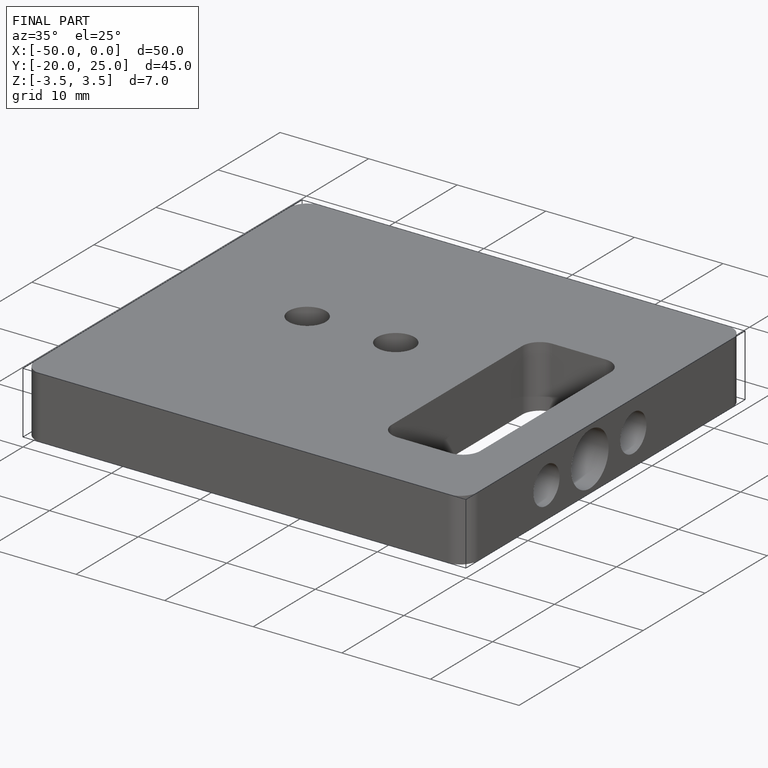
[diagram: finished part — iso view with bounding-box wireframe]
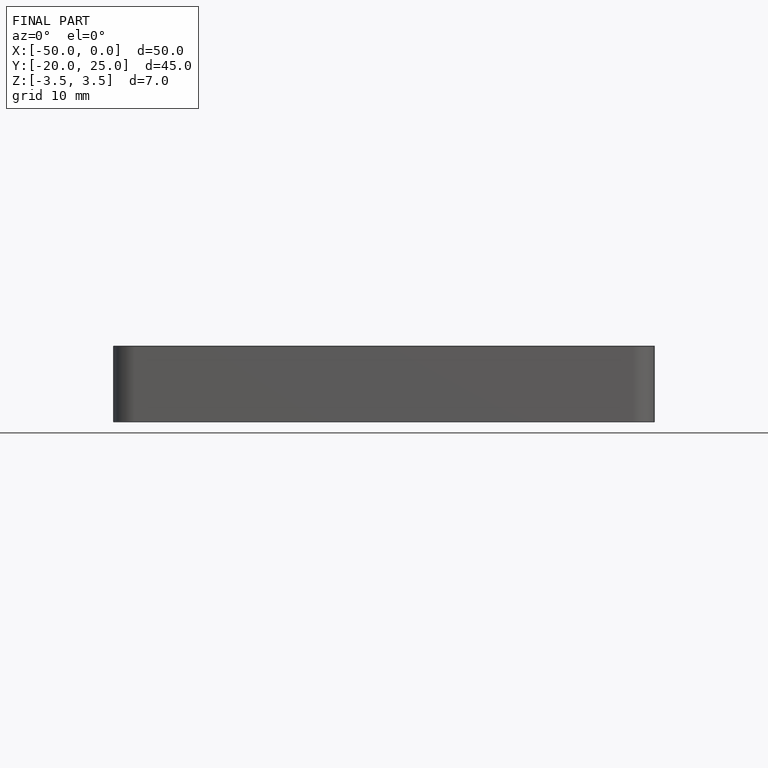
[diagram: finished part — front view with bounding-box wireframe]
